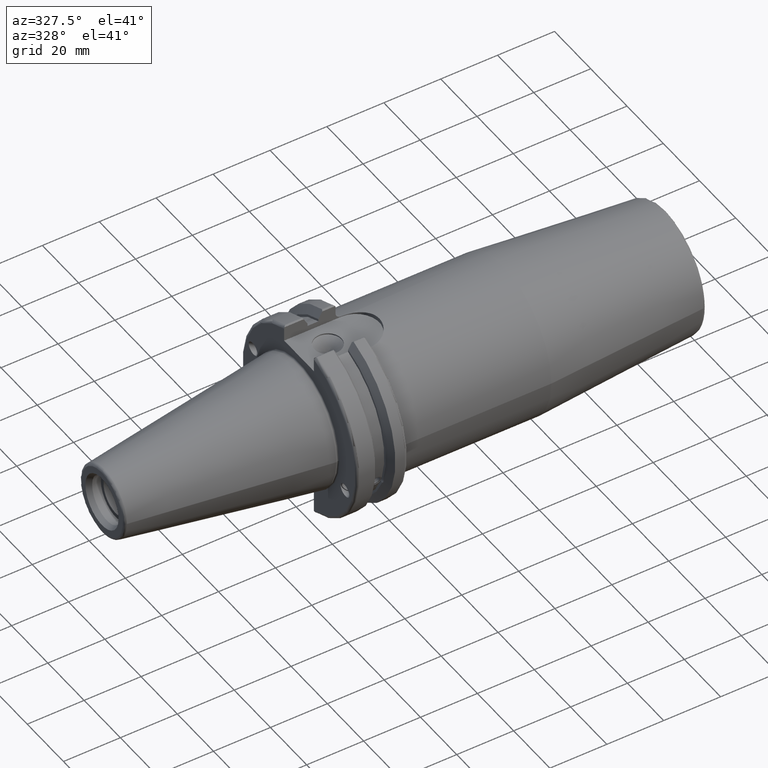
[diagram: clean part render]
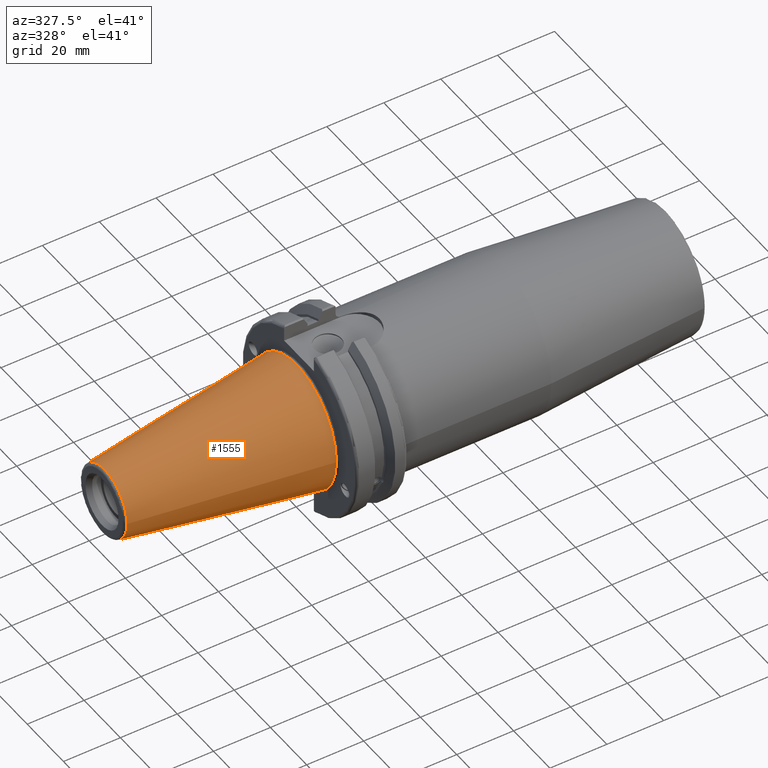
[diagram: same view with one face highlighted and labeled with its STEP entity id]
A machine part, auxiliary view. The second image highlights one B-rep face of the part: STEP entity #1555.
In plain terms, the highlighted conical surface has half-angle 8.297 deg.
Its self-contained STEP definition (entity closure, byte-faithful):
#110=CONICAL_SURFACE('',#1750,17.2484375,0.144812498238939);
#188=FACE_OUTER_BOUND('',#291,.T.);
#291=EDGE_LOOP('',(#1343,#1344,#1345,#1346,#1347));
#377=CIRCLE('',#1744,12.3966635780937);
#378=CIRCLE('',#1745,12.3966635780937);
#382=CIRCLE('',#1751,22.225);
#464=LINE('',#3075,#547);
#547=VECTOR('',#2157,17.2484375);
#744=VERTEX_POINT('',#3062);
#745=VERTEX_POINT('',#3063);
#748=VERTEX_POINT('',#3073);
#959=EDGE_CURVE('',#744,#745,#377,.T.);
#960=EDGE_CURVE('',#745,#744,#378,.T.);
#964=EDGE_CURVE('',#748,#748,#382,.T.);
#965=EDGE_CURVE('',#748,#745,#464,.T.);
#1343=ORIENTED_EDGE('',*,*,#964,.F.);
#1344=ORIENTED_EDGE('',*,*,#965,.T.);
#1345=ORIENTED_EDGE('',*,*,#959,.F.);
#1346=ORIENTED_EDGE('',*,*,#960,.F.);
#1347=ORIENTED_EDGE('',*,*,#965,.F.);
#1555=ADVANCED_FACE('',(#188),#110,.T.);
#1744=AXIS2_PLACEMENT_3D('',#3064,#2141,#2142);
#1745=AXIS2_PLACEMENT_3D('',#3065,#2143,#2144);
#1750=AXIS2_PLACEMENT_3D('',#3072,#2153,#2154);
#1751=AXIS2_PLACEMENT_3D('',#3074,#2155,#2156);
#2141=DIRECTION('center_axis',(-1.,0.,0.));
#2142=DIRECTION('ref_axis',(0.,-1.,3.06161699786838E-17));
#2143=DIRECTION('center_axis',(-1.,0.,0.));
#2144=DIRECTION('ref_axis',(0.,-1.,3.06161699786838E-17));
#2153=DIRECTION('center_axis',(1.,0.,0.));
#2154=DIRECTION('ref_axis',(0.,1.,0.));
#2155=DIRECTION('center_axis',(1.,0.,0.));
#2156=DIRECTION('ref_axis',(0.,0.,-1.));
#2157=DIRECTION('',(-0.989532981063282,0.144306893071729,1.76724974695192E-17));
#3062=CARTESIAN_POINT('',(-67.3943068930717,-1.5181534371019E-15,12.3966635780937));
#3063=CARTESIAN_POINT('',(-67.3943068930718,-12.3966635780937,-1.5181534371019E-15));
#3064=CARTESIAN_POINT('Origin',(-67.3943068930717,0.,-1.89769179637738E-15));
#3065=CARTESIAN_POINT('Origin',(-67.3943068930717,0.,-1.89769179637738E-15));
#3072=CARTESIAN_POINT('Origin',(-34.125,0.,0.));
#3073=CARTESIAN_POINT('',(0.,-22.225,-2.72177751110499E-15));
#3074=CARTESIAN_POINT('Origin',(0.,0.,0.));
#3075=CARTESIAN_POINT('',(-34.125,-17.2484375,-2.11232437746682E-15));